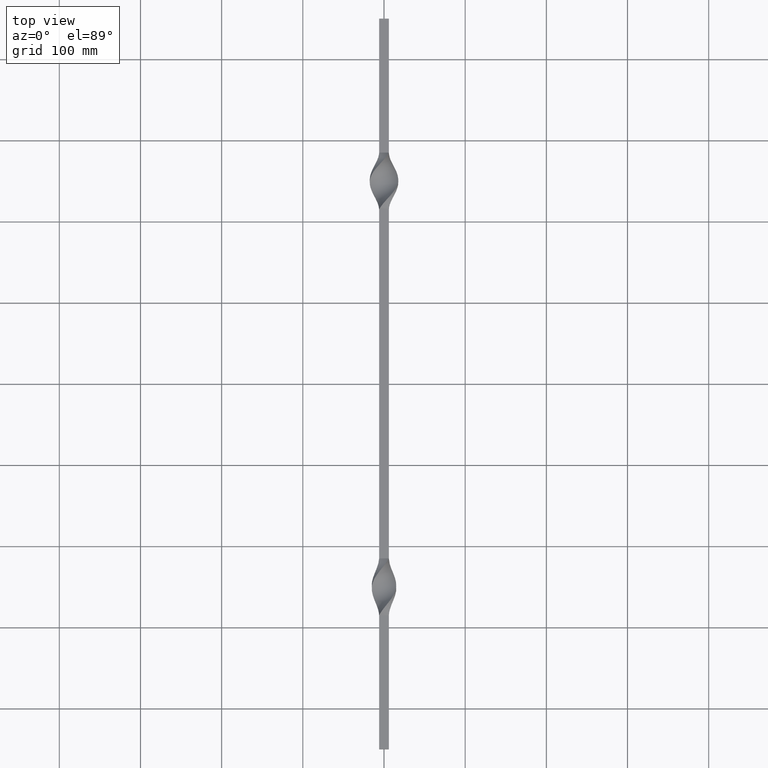
[diagram: clean part render]
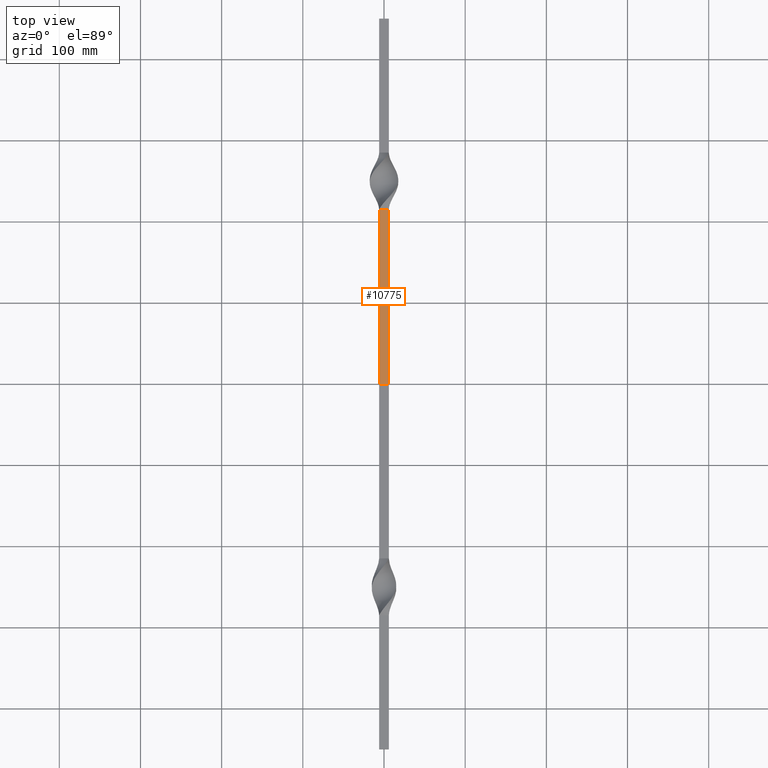
[diagram: same view with one face highlighted and labeled with its STEP entity id]
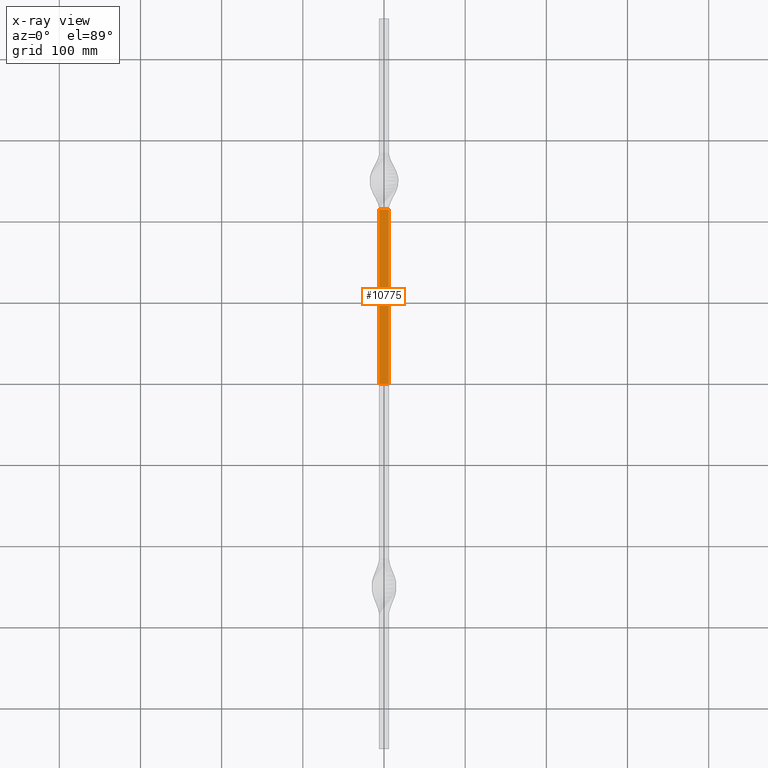
[diagram: x-ray of the same camera — body ghosted, the highlighted face saturated]
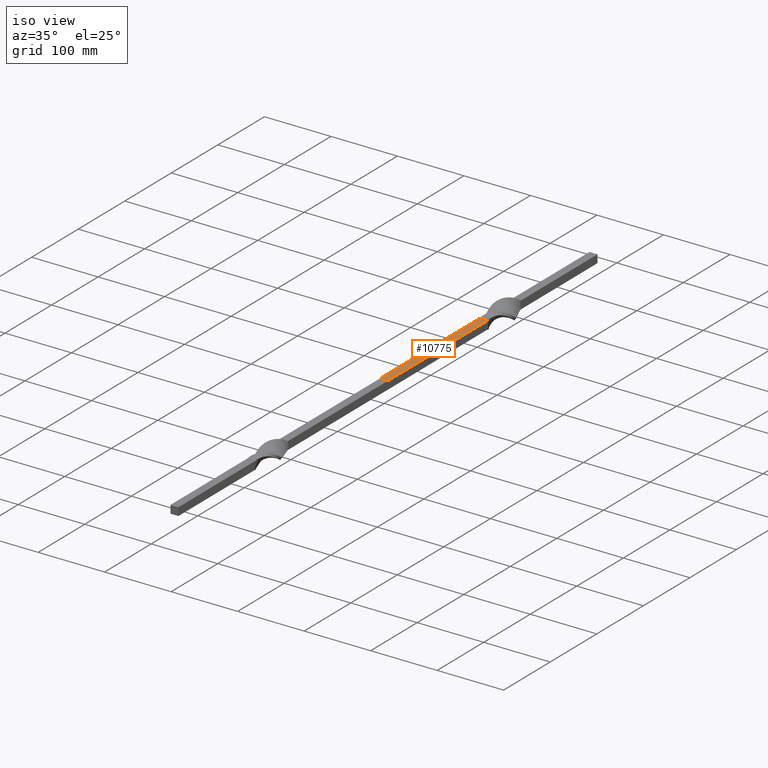
[diagram: same view with one face highlighted and labeled with its STEP entity id]
A machine part, top view. The second image highlights one B-rep face of the part: STEP entity #10775.
The next image is the same camera in x-ray: the body ghosted, the highlighted face saturated — about 0% of this face is hidden behind the body in this view.
A second angle (iso view) of the same face is appended — the face is thin or edge-on in the first view.
In plain terms, the highlighted planar face has unit normal (-0, 0, -1).
Its self-contained STEP definition (entity closure, byte-faithful):
#16 = B_SPLINE_CURVE_WITH_KNOTS ( 'NONE', 3,
 ( #5127, #12277, #9203, #7230 ),
 .UNSPECIFIED., .F., .F.,
 ( 4, 4 ),
 ( 0.000000000000000000, 1.000000000000000000 ),
 .UNSPECIFIED. ) ;
#379 = ORIENTED_EDGE ( 'NONE', *, *, #10273, .T. ) ;
#617 = CARTESIAN_POINT ( 'NONE',  ( -5.999985707974271776, 215.0000000054434963, 6.000014296099382527 ) ) ;
#1019 = DIRECTION ( 'NONE',  ( -2.381790619840562215E-06, 0.000000000000000000, -0.9999999999971636022 ) ) ;
#1568 = ORIENTED_EDGE ( 'NONE', *, *, #9022, .T. ) ;
#2310 = LINE ( 'NONE', #5358, #6560 ) ;
#2346 = AXIS2_PLACEMENT_3D ( 'NONE', #8111, #1019, #7126 ) ;
#2834 = FACE_OUTER_BOUND ( 'NONE', #3497, .T. ) ;
#3097 = CARTESIAN_POINT ( 'NONE',  ( -5.999992853987119901, 0.000000000000000000, 6.000007148049705918 ) ) ;
#3432 = CARTESIAN_POINT ( 'NONE',  ( 6.000014289435020132, 214.9999999999999716, 5.999985714611950627 ) ) ;
#3497 = EDGE_LOOP ( 'NONE', ( #10961, #1568, #379, #10509 ) ) ;
#4727 = LINE ( 'NONE', #6927, #11459 ) ;
#4835 = EDGE_CURVE ( 'NONE', #9407, #5811, #2310, .T. ) ;
#5127 = CARTESIAN_POINT ( 'NONE',  ( -5.999992853987119901, 0.000000000000000000, 6.000007148049705918 ) ) ;
#5358 = CARTESIAN_POINT ( 'NONE',  ( 6.000014289276650814, 214.9999999999999716, 5.999985710689429652 ) ) ;
#5667 = PLANE ( 'NONE',  #2346 ) ;
#5811 = VERTEX_POINT ( 'NONE', #3432 ) ;
#6560 = VECTOR ( 'NONE', #9385, 1000.000000000000227 ) ;
#6638 = DIRECTION ( 'NONE',  ( -0.000000000000000000, 1.000000000000000000, -0.000000000000000000 ) ) ;
#6782 = LINE ( 'NONE', #12406, #8520 ) ;
#6927 = CARTESIAN_POINT ( 'NONE',  ( 6.000014289435020132, -16.97060317452753253, 5.999985714611950627 ) ) ;
#7126 = DIRECTION ( 'NONE',  ( -0.9999999999971634912, 0.000000000000000000, 2.381790619840561791E-06 ) ) ;
#7230 = CARTESIAN_POINT ( 'NONE',  ( 6.000007144717526053, 0.000000000000000000, 5.999992857305958438 ) ) ;
#7311 = CARTESIAN_POINT ( 'NONE',  ( 6.000007144717526053, 0.000000000000000000, 5.999992857305958438 ) ) ;
#8111 = CARTESIAN_POINT ( 'NONE',  ( 6.000014289435020132, -16.97060317452753253, 5.999985714611950627 ) ) ;
#8126 = DIRECTION ( 'NONE',  ( -0.000000000000000000, 1.000000000000000000, -0.000000000000000000 ) ) ;
#8406 = VERTEX_POINT ( 'NONE', #7311 ) ;
#8520 = VECTOR ( 'NONE', #6638, 1000.000000000000000 ) ;
#9022 = EDGE_CURVE ( 'NONE', #11776, #8406, #16, .T. ) ;
#9203 = CARTESIAN_POINT ( 'NONE',  ( 2.000014290298588460, 6.938893903907228378E-15, 5.999995241774428223 ) ) ;
#9385 = DIRECTION ( 'NONE',  ( 0.9999999999971640463, -0.000000000000000000, -2.381548938525795966E-06 ) ) ;
#9407 = VERTEX_POINT ( 'NONE', #617 ) ;
#10273 = EDGE_CURVE ( 'NONE', #8406, #5811, #4727, .T. ) ;
#10509 = ORIENTED_EDGE ( 'NONE', *, *, #4835, .F. ) ;
#10775 = ADVANCED_FACE ( 'NONE', ( #2834 ), #5667, .F. ) ;
#10961 = ORIENTED_EDGE ( 'NONE', *, *, #12216, .F. ) ;
#11459 = VECTOR ( 'NONE', #8126, 1000.000000000000000 ) ;
#11776 = VERTEX_POINT ( 'NONE', #3097 ) ;
#12216 = EDGE_CURVE ( 'NONE', #11776, #9407, #6782, .T. ) ;
#12277 = CARTESIAN_POINT ( 'NONE',  ( -1.999985708837843656, 6.938893903907228378E-15, 6.000004768936904931 ) ) ;
#12406 = CARTESIAN_POINT ( 'NONE',  ( -5.999985707974271776, -16.97060317452753253, 6.000014296099382527 ) ) ;